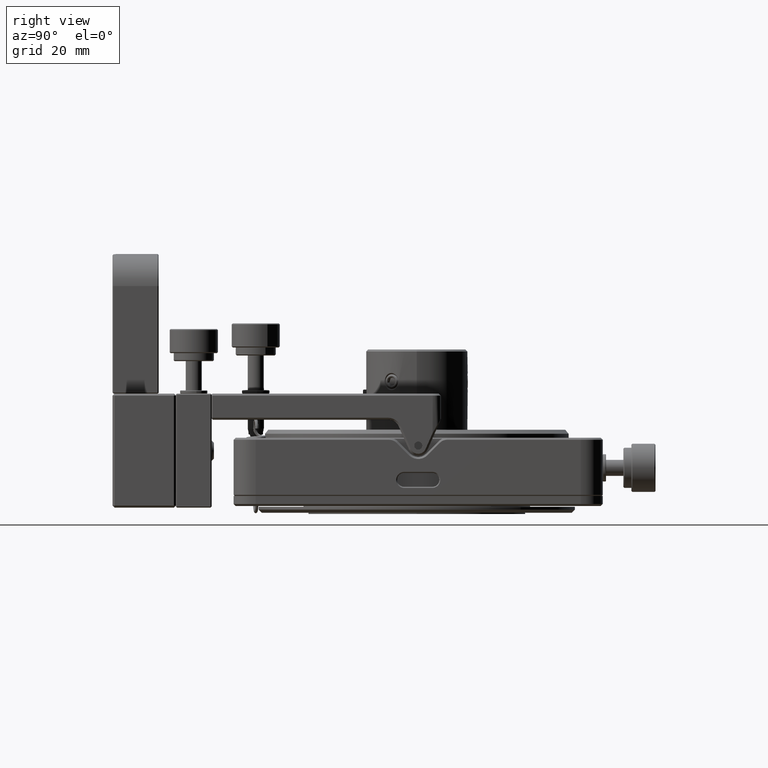
[diagram: clean part render]
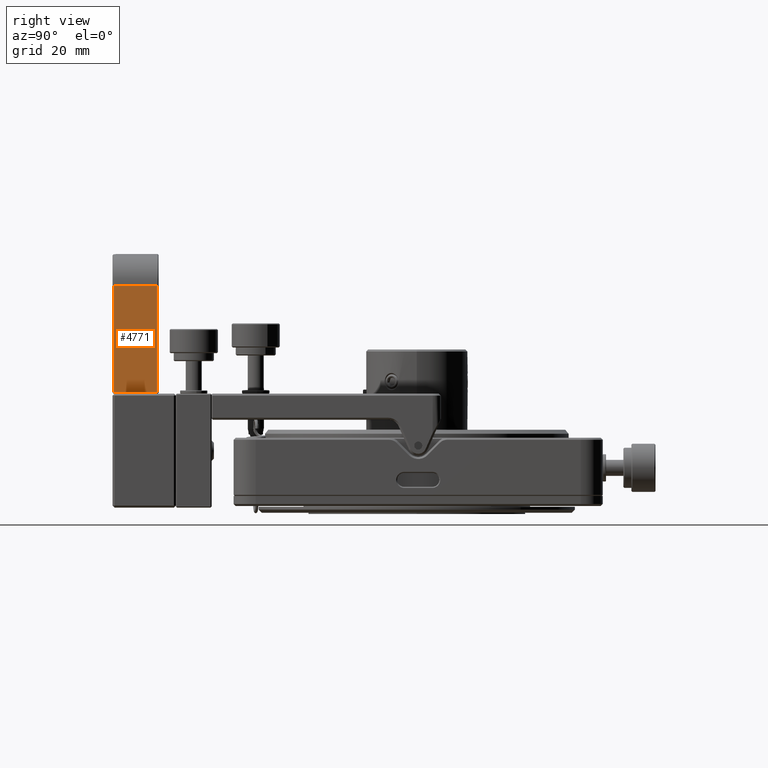
[diagram: same view with one face highlighted and labeled with its STEP entity id]
A machine part, right view. The second image highlights one B-rep face of the part: STEP entity #4771.
In plain terms, the highlighted planar face has unit normal (-1, 0, 0).
Its self-contained STEP definition (entity closure, byte-faithful):
#4771 = ADVANCED_FACE ( 'NONE', ( #80493 ), #55569, .F. ) ;
#12112 = LINE ( 'NONE', #92203, #76700 ) ;
#12184 = EDGE_CURVE ( 'NONE', #58598, #163921, #12112, .T. ) ;
#15999 = ORIENTED_EDGE ( 'NONE', *, *, #141503, .T. ) ;
#18369 = ORIENTED_EDGE ( 'NONE', *, *, #25240, .T. ) ;
#23725 = LINE ( 'NONE', #118947, #36842 ) ;
#24060 = VERTEX_POINT ( 'NONE', #151155 ) ;
#25240 = EDGE_CURVE ( 'NONE', #24060, #68391, #23725, .T. ) ;
#32454 = CARTESIAN_POINT ( 'NONE',  ( 25.00000000000001421, 3.349999999999993427, 40.99999999999999289 ) ) ;
#36842 = VECTOR ( 'NONE', #78884, 1000.000000000000000 ) ;
#47803 = DIRECTION ( 'NONE',  ( -1.993935029858399143E-16, 1.106856289877721583E-32, -1.000000000000000000 ) ) ;
#55569 = PLANE ( 'NONE',  #61926 ) ;
#56354 = CARTESIAN_POINT ( 'NONE',  ( 25.00000000000001421, -7.650000000000019895, 40.99999999999999289 ) ) ;
#57545 = EDGE_CURVE ( 'NONE', #68391, #58598, #102256, .T. ) ;
#58598 = VERTEX_POINT ( 'NONE', #32454 ) ;
#61926 = AXIS2_PLACEMENT_3D ( 'NONE', #122351, #150810, #135674 ) ;
#64650 = DIRECTION ( 'NONE',  ( -5.551115123125807354E-17, -1.000000000000000000, 0.000000000000000000 ) ) ;
#65523 = LINE ( 'NONE', #119819, #158206 ) ;
#68391 = VERTEX_POINT ( 'NONE', #91963 ) ;
#76700 = VECTOR ( 'NONE', #64650, 1000.000000000000000 ) ;
#78169 = CARTESIAN_POINT ( 'NONE',  ( 25.00000000000001421, 3.349999999999993427, 40.99999999999999289 ) ) ;
#78884 = DIRECTION ( 'NONE',  ( 5.551115123125807354E-17, 1.000000000000000000, 0.000000000000000000 ) ) ;
#80493 = FACE_OUTER_BOUND ( 'NONE', #136430, .T. ) ;
#87422 = ORIENTED_EDGE ( 'NONE', *, *, #57545, .T. ) ;
#91963 = CARTESIAN_POINT ( 'NONE',  ( 25.00000000000000711, 3.349999999999993427, 14.44999999999999751 ) ) ;
#92203 = CARTESIAN_POINT ( 'NONE',  ( 25.00000000000001421, 3.599999999999993872, 40.99999999999999289 ) ) ;
#102256 = LINE ( 'NONE', #78169, #106514 ) ;
#106514 = VECTOR ( 'NONE', #144959, 1000.000000000000000 ) ;
#118947 = CARTESIAN_POINT ( 'NONE',  ( 25.00000000000000711, 3.599999999999993872, 14.44999999999999751 ) ) ;
#119819 = CARTESIAN_POINT ( 'NONE',  ( 25.00000000000001421, -7.650000000000019895, 48.99999999999999289 ) ) ;
#122351 = CARTESIAN_POINT ( 'NONE',  ( 25.00000000000001421, 3.599999999999993872, 48.99999999999999289 ) ) ;
#135674 = DIRECTION ( 'NONE',  ( 1.993935029858399143E-16, -1.106856289877721583E-32, 1.000000000000000000 ) ) ;
#136430 = EDGE_LOOP ( 'NONE', ( #144844, #15999, #18369, #87422 ) ) ;
#141503 = EDGE_CURVE ( 'NONE', #163921, #24060, #65523, .T. ) ;
#144844 = ORIENTED_EDGE ( 'NONE', *, *, #12184, .T. ) ;
#144959 = DIRECTION ( 'NONE',  ( 1.993935029858399143E-16, -1.106856289877721583E-32, 1.000000000000000000 ) ) ;
#150810 = DIRECTION ( 'NONE',  ( -1.000000000000000000, 5.551115123125781470E-17, 1.993935029858399143E-16 ) ) ;
#151155 = CARTESIAN_POINT ( 'NONE',  ( 25.00000000000000711, -7.650000000000019895, 14.44999999999999751 ) ) ;
#158206 = VECTOR ( 'NONE', #47803, 1000.000000000000000 ) ;
#163921 = VERTEX_POINT ( 'NONE', #56354 ) ;